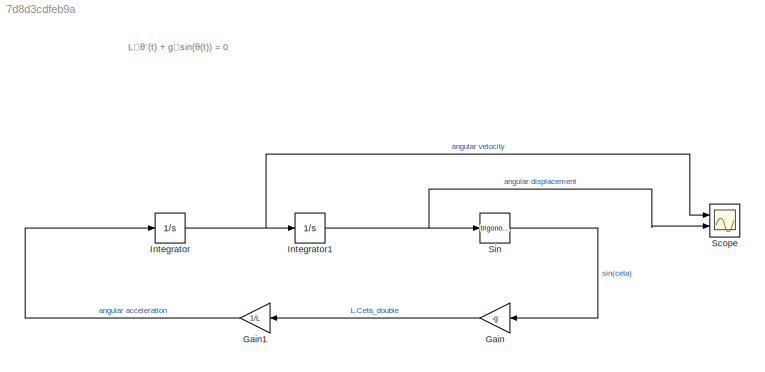
MODEL slx_7d8d3cdfeb9a
KIND model
CONFIG AbsTol = auto
CONFIG EnableMultiTasking = off
CONFIG FixedStep = auto
CONFIG MaxStep = 1e-3
CONFIG MinStep = auto
CONFIG RelTol = 1e-3
CONFIG SampleTimeConstraint = Unconstrained
CONFIG SolverName = VariableStepAuto
CONFIG StartTime = 0.0
CONFIG StopTime = 10.0
BLOCK [Gain] Gain
  Gain = -g
  NameLocation = top
BLOCK [Gain] Gain1
  Gain = 1/L
  NameLocation = top
BLOCK [Integrator] Integrator
  Ports = [1, 1]
BLOCK [Integrator] Integrator1
  InitialCondition = 2
  Ports = [1, 1]
BLOCK [Scope] Scope
  Floating = off
  NumInputPorts = 2
  Ports = [2]
  ScopeSpecificationString = Simulink.scopes.TimeScopeBlockCfg('CurrentConfiguration', extmgr.ConfigurationSet(extmgr.Configuration('Core','General UI',true),extmgr.Configuration('Core','Source UI',true),extmgr.Configuration('Sources','WiredSimulink',true),extmgr.Configuration('Visuals','Time Domain',true,'SerializedDisplays',{struct('MinYLimReal','-2.94665','MaxYLimReal','2.94665','YLabelReal','','MinYLimMag','0.00000','MaxY...<+2040ch>
BLOCK [Trigonometry] Sin
  Ports = [1, 1]
ANNOTATION (root): L ⋅ θ ¨( t ) + g ⋅sin( θ ( t )) = 0
LINE Gain1:1 -> Integrator:1
LINE Gain:1 -> Gain1:1
NET Integrator1:1 -> Scope:2, Sin:1
NET Integrator:1 -> Integrator1:1, Scope:1
LINE Sin:1 -> Gain:1
note: NET lines group one-source signal fan-out (src -> all destinations, sorted); 1:1 wires keep LINE
